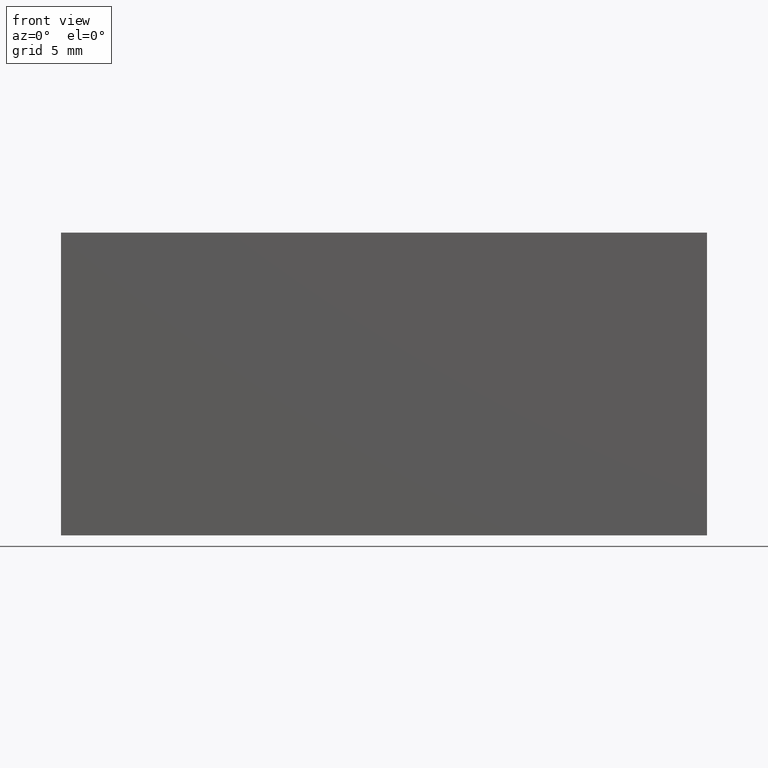
[diagram: clean part render]
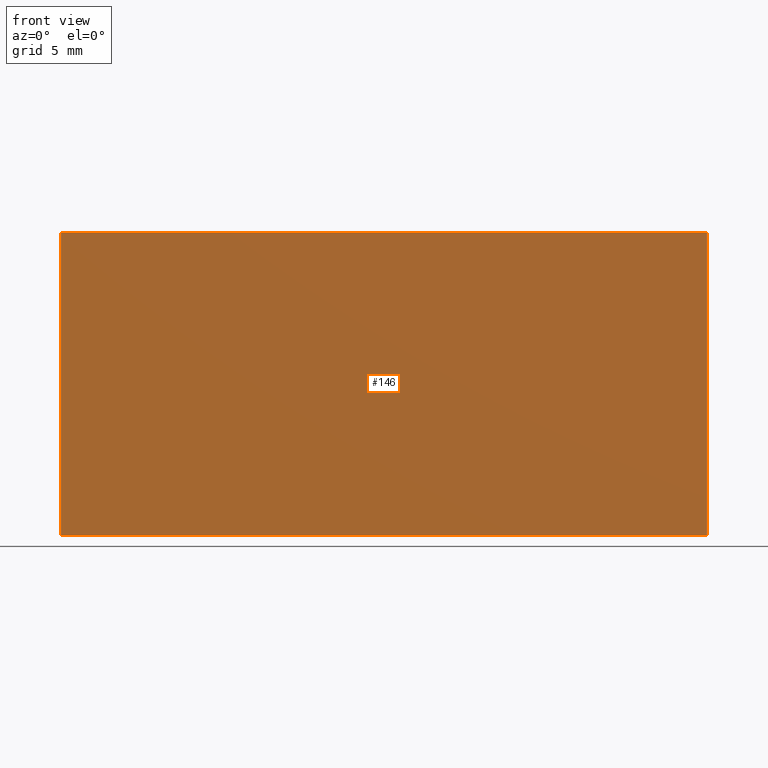
[diagram: same view with one face highlighted and labeled with its STEP entity id]
A machine part, front view. The second image highlights one B-rep face of the part: STEP entity #146.
In plain terms, the highlighted planar face has unit normal (0, -1, 0).
Its self-contained STEP definition (entity closure, byte-faithful):
#23=FACE_OUTER_BOUND('',#31,.T.);
#31=EDGE_LOOP('',(#123,#124,#125,#126));
#36=LINE('',#225,#52);
#42=LINE('',#238,#58);
#49=LINE('',#254,#65);
#50=LINE('',#256,#66);
#52=VECTOR('',#186,10.);
#58=VECTOR('',#196,10.);
#65=VECTOR('',#213,10.);
#66=VECTOR('',#216,10.);
#67=VERTEX_POINT('',#221);
#69=VERTEX_POINT('',#224);
#73=VERTEX_POINT('',#234);
#78=VERTEX_POINT('',#252);
#80=EDGE_CURVE('',#69,#67,#36,.T.);
#87=EDGE_CURVE('',#73,#69,#42,.T.);
#95=EDGE_CURVE('',#67,#78,#49,.T.);
#96=EDGE_CURVE('',#78,#73,#50,.T.);
#123=ORIENTED_EDGE('',*,*,#96,.T.);
#124=ORIENTED_EDGE('',*,*,#87,.T.);
#125=ORIENTED_EDGE('',*,*,#80,.T.);
#126=ORIENTED_EDGE('',*,*,#95,.T.);
#138=PLANE('',#179);
#146=ADVANCED_FACE('',(#23),#138,.T.);
#179=AXIS2_PLACEMENT_3D('',#255,#214,#215);
#186=DIRECTION('',(1.,1.90819582357449E-16,0.));
#196=DIRECTION('',(0.,0.,-1.));
#213=DIRECTION('',(0.,0.,1.));
#214=DIRECTION('center_axis',(1.90819582357449E-16,-1.,0.));
#215=DIRECTION('ref_axis',(0.,0.,-1.));
#216=DIRECTION('',(-1.,-1.90819582357449E-16,0.));
#221=CARTESIAN_POINT('',(16.,-3.99999999999999,-7.5));
#224=CARTESIAN_POINT('',(-16.,-4.,-7.5));
#225=CARTESIAN_POINT('',(-16.,-4.,-7.5));
#234=CARTESIAN_POINT('',(-16.,-4.,7.5));
#238=CARTESIAN_POINT('',(-16.,-4.,0.));
#252=CARTESIAN_POINT('',(16.,-3.99999999999999,7.5));
#254=CARTESIAN_POINT('',(16.,-3.99999999999999,0.));
#255=CARTESIAN_POINT('Origin',(16.,-3.99999999999999,0.));
#256=CARTESIAN_POINT('',(-16.,-4.,7.5));